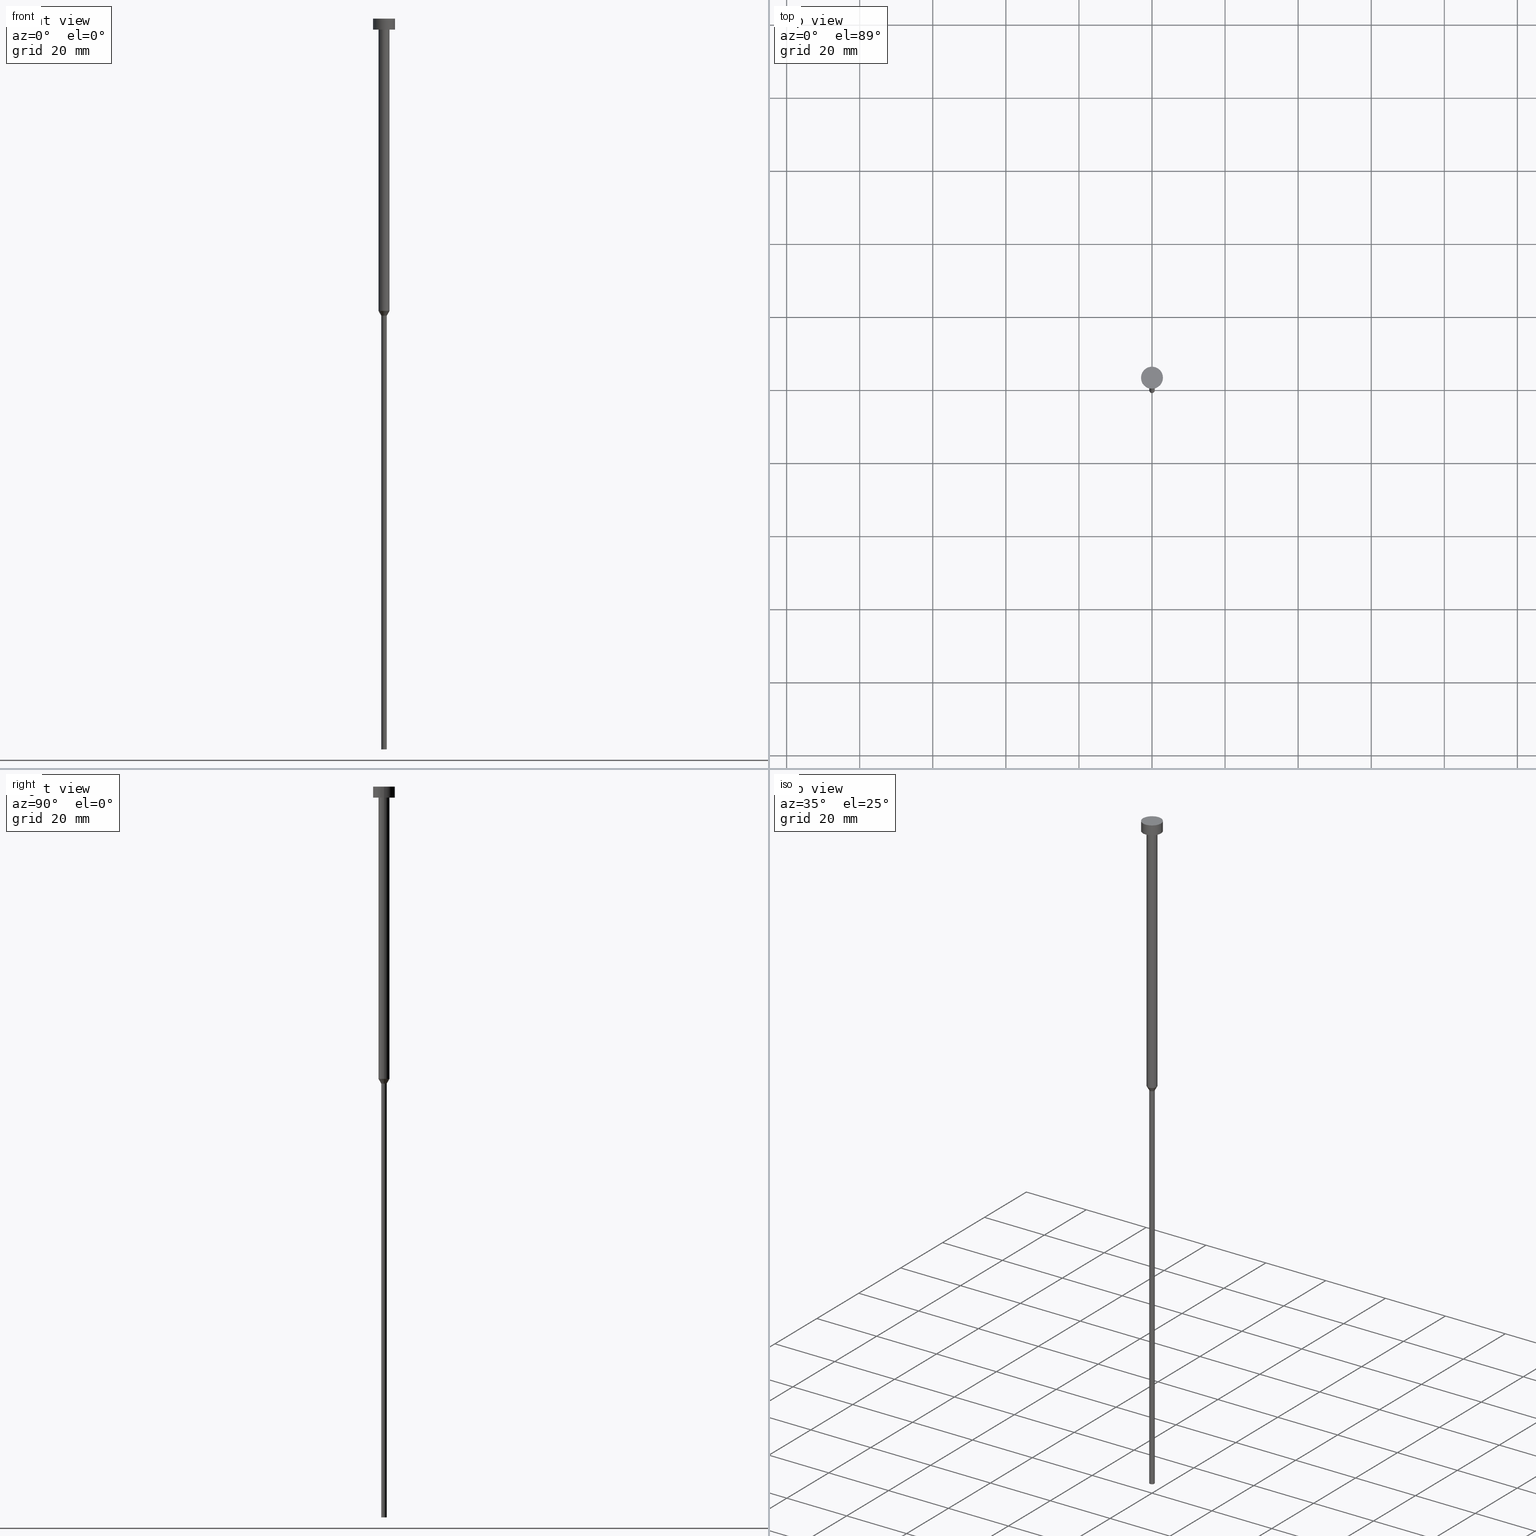
[diagram: canonical four-view strip — front | top / right | iso, engineering-drawing reading convention]
A machine part, canonical four-view strip (front | top / right | iso — engineering-drawing reading convention). The complete STEP part file that produces these views, byte-faithful:
ISO-10303-21;
HEADER;
FILE_DESCRIPTION (( 'STEP AP203' ),
    '1' );
FILE_NAME ('d0ce.STEP',
    '2023-02-13T10:00:05',
    ( '' ),
    ( '' ),
    'SwSTEP 2.0',
    'SolidWorks 2019',
    '' );
FILE_SCHEMA (( 'CONFIG_CONTROL_DESIGN' ));
ENDSEC;

DATA;
#1 = ORIENTED_EDGE ( 'NONE', *, *, #306, .T. ) ;
#2 = CARTESIAN_POINT ( 'NONE',  ( 0.7500000000000000000, 0.000000000000000000, 0.000000000000000000 ) ) ;
#3 = DIRECTION ( 'NONE',  ( -0.000000000000000000, -0.000000000000000000, 1.000000000000000000 ) ) ;
#4 = PERSON_AND_ORGANIZATION_ROLE ( 'design_owner' ) ;
#5 = EDGE_LOOP ( 'NONE', ( #310, #12, #255, #161 ) ) ;
#6 = ORIENTED_EDGE ( 'NONE', *, *, #298, .T. ) ;
#7 = VECTOR ( 'NONE', #333, 1000.000000000000227 ) ;
#8 = LOCAL_TIME ( 11, 0, 5.000000000000000000, #83 ) ;
#9 = EDGE_LOOP ( 'NONE', ( #216, #198, #103, #20 ) ) ;
#10 = ADVANCED_FACE ( 'NONE', ( #302 ), #226, .T. ) ;
#11 = CARTESIAN_POINT ( 'NONE',  ( -1.500000000000000000, 1.836970198721029934E-16, -80.00000000000000000 ) ) ;
#12 = ORIENTED_EDGE ( 'NONE', *, *, #45, .T. ) ;
#13 = SHAPE_DEFINITION_REPRESENTATION ( #218, #67 ) ;
#14 = PLANE ( 'NONE',  #78 ) ;
#15 = CARTESIAN_POINT ( 'NONE',  ( 0.7500000000000000000, 0.000000000000000000, -81.29903810567665801 ) ) ;
#16 = DIRECTION ( 'NONE',  ( 1.000000000000000000, 0.000000000000000000, 0.000000000000000000 ) ) ;
#17 = CALENDAR_DATE ( 2023, 13, 2 ) ;
#18 = FACE_OUTER_BOUND ( 'NONE', #104, .T. ) ;
#19 = ADVANCED_FACE ( 'NONE', ( #197 ), #61, .T. ) ;
#20 = ORIENTED_EDGE ( 'NONE', *, *, #84, .F. ) ;
#21 = COORDINATED_UNIVERSAL_TIME_OFFSET ( 1, 0, .AHEAD. ) ;
#22 = APPROVAL_PERSON_ORGANIZATION ( #98, #339, #86 ) ;
#23 = DIRECTION ( 'NONE',  ( -1.000000000000000000, 0.000000000000000000, -0.000000000000000000 ) ) ;
#24 = CIRCLE ( 'NONE', #40, 1.500000000000000000 ) ;
#25 = CC_DESIGN_PERSON_AND_ORGANIZATION_ASSIGNMENT ( #110, #184, ( #134 ) ) ;
#26 = CARTESIAN_POINT ( 'NONE',  ( 0.000000000000000000, 0.000000000000000000, -3.000000000000000888 ) ) ;
#27 = CARTESIAN_POINT ( 'NONE',  ( 0.000000000000000000, 0.000000000000000000, -200.0000000000000000 ) ) ;
#28 = EDGE_CURVE ( 'NONE', #65, #248, #331, .T. ) ;
#29 = EDGE_LOOP ( 'NONE', ( #91, #325 ) ) ;
#30 = LINE ( 'NONE', #219, #7 ) ;
#31 = DIRECTION ( 'NONE',  ( 1.000000000000000000, 0.000000000000000000, 0.000000000000000000 ) ) ;
#32 = CC_DESIGN_APPROVAL ( #113, ( #134 ) ) ;
#33 = ORIENTED_EDGE ( 'NONE', *, *, #147, .F. ) ;
#34 = CARTESIAN_POINT ( 'NONE',  ( 1.500000000000000000, 0.000000000000000000, -80.00000000000000000 ) ) ;
#35 = ORIENTED_EDGE ( 'NONE', *, *, #254, .F. ) ;
#36 = ORIENTED_EDGE ( 'NONE', *, *, #45, .F. ) ;
#37 = CC_DESIGN_DATE_AND_TIME_ASSIGNMENT ( #291, #345, ( #134 ) ) ;
#38 = LOCAL_TIME ( 11, 0, 5.000000000000000000, #46 ) ;
#39 = DIRECTION ( 'NONE',  ( -0.000000000000000000, -0.000000000000000000, 1.000000000000000000 ) ) ;
#40 = AXIS2_PLACEMENT_3D ( 'NONE', #192, #122, #196 ) ;
#41 = CC_DESIGN_SECURITY_CLASSIFICATION ( #134, ( #112 ) ) ;
#42 = ORIENTED_EDGE ( 'NONE', *, *, #89, .T. ) ;
#43 = FACE_OUTER_BOUND ( 'NONE', #165, .T. ) ;
#44 = VERTEX_POINT ( 'NONE', #123 ) ;
#45 = EDGE_CURVE ( 'NONE', #71, #206, #166, .T. ) ;
#46 = COORDINATED_UNIVERSAL_TIME_OFFSET ( 1, 0, .AHEAD. ) ;
#47 = DIRECTION ( 'NONE',  ( -0.000000000000000000, -0.000000000000000000, 1.000000000000000000 ) ) ;
#48 = CARTESIAN_POINT ( 'NONE',  ( 0.000000000000000000, 0.000000000000000000, -3.000000000000000888 ) ) ;
#49 = CYLINDRICAL_SURFACE ( 'NONE', #328, 0.7500000000000000000 ) ;
#50 = APPROVAL_DATE_TIME ( #236, #113 ) ;
#51 = PRODUCT_DEFINITION ( 'NEZN�M�', '', #112, #82 ) ;
#52 = DIRECTION ( 'NONE',  ( -0.000000000000000000, -0.000000000000000000, 1.000000000000000000 ) ) ;
#53 = COORDINATED_UNIVERSAL_TIME_OFFSET ( 1, 0, .AHEAD. ) ;
#54 = APPROVAL_DATE_TIME ( #108, #339 ) ;
#55 = CARTESIAN_POINT ( 'NONE',  ( -3.000000000000000000, 3.673940397442059868E-16, -3.000000000000000888 ) ) ;
#56 = PERSON_AND_ORGANIZATION ( #330, #64 ) ;
#57 = ORIENTED_EDGE ( 'NONE', *, *, #306, .F. ) ;
#58 = ORIENTED_EDGE ( 'NONE', *, *, #265, .F. ) ;
#59 = VECTOR ( 'NONE', #205, 1000.000000000000000 ) ;
#60 = DIRECTION ( 'NONE',  ( 1.000000000000000000, 0.000000000000000000, 0.000000000000000000 ) ) ;
#61 = CYLINDRICAL_SURFACE ( 'NONE', #284, 3.000000000000000000 ) ;
#62 = ORIENTED_EDGE ( 'NONE', *, *, #84, .T. ) ;
#63 = VECTOR ( 'NONE', #52, 1000.000000000000000 ) ;
#64 = ORGANIZATION ( 'NEUR�EN�', 'NEUR�EN�', '' ) ;
#65 = VERTEX_POINT ( 'NONE', #15 ) ;
#66 = CARTESIAN_POINT ( 'NONE',  ( -1.500000000000000000, 1.836970198721029934E-16, 0.000000000000000000 ) ) ;
#67 = ADVANCED_BREP_SHAPE_REPRESENTATION ( 'd0ce', ( #274, #96 ), #315 ) ;
#68 = DIRECTION ( 'NONE',  ( 1.000000000000000000, 0.000000000000000000, 0.000000000000000000 ) ) ;
#69 = PERSON_AND_ORGANIZATION ( #330, #64 ) ;
#70 = ORIENTED_EDGE ( 'NONE', *, *, #279, .T. ) ;
#71 = VERTEX_POINT ( 'NONE', #11 ) ;
#72 = ORIENTED_EDGE ( 'NONE', *, *, #193, .F. ) ;
#73 = DIRECTION ( 'NONE',  ( 1.000000000000000000, 0.000000000000000000, 0.000000000000000000 ) ) ;
#74 = ADVANCED_FACE ( 'NONE', ( #340 ), #311, .T. ) ;
#75 = CARTESIAN_POINT ( 'NONE',  ( 3.000000000000000000, 0.000000000000000000, -3.000000000000000888 ) ) ;
#76 = CYLINDRICAL_SURFACE ( 'NONE', #346, 1.500000000000000000 ) ;
#77 = DIRECTION ( 'NONE',  ( 0.000000000000000000, 0.000000000000000000, 1.000000000000000000 ) ) ;
#78 = AXIS2_PLACEMENT_3D ( 'NONE', #111, #210, #282 ) ;
#79 = ORIENTED_EDGE ( 'NONE', *, *, #137, .T. ) ;
#80 = DIRECTION ( 'NONE',  ( 1.000000000000000000, 0.000000000000000000, 0.000000000000000000 ) ) ;
#81 = DIRECTION ( 'NONE',  ( -0.000000000000000000, -0.000000000000000000, 1.000000000000000000 ) ) ;
#82 = DESIGN_CONTEXT ( 'detailed design', #151, 'design' ) ;
#83 = COORDINATED_UNIVERSAL_TIME_OFFSET ( 1, 0, .AHEAD. ) ;
#84 = EDGE_CURVE ( 'NONE', #248, #65, #273, .T. ) ;
#85 = EDGE_LOOP ( 'NONE', ( #6, #1 ) ) ;
#86 = APPROVAL_ROLE ( '' ) ;
#87 = DATE_AND_TIME ( #139, #178 ) ;
#88 = LINE ( 'NONE', #142, #329 ) ;
#89 = EDGE_CURVE ( 'NONE', #316, #44, #200, .T. ) ;
#90 = ORIENTED_EDGE ( 'NONE', *, *, #292, .T. ) ;
#91 = ORIENTED_EDGE ( 'NONE', *, *, #137, .F. ) ;
#92 = DIRECTION ( 'NONE',  ( -0.000000000000000000, -0.000000000000000000, 1.000000000000000000 ) ) ;
#93 = ADVANCED_FACE ( 'NONE', ( #314 ), #76, .T. ) ;
#94 = CYLINDRICAL_SURFACE ( 'NONE', #129, 0.7500000000000000000 ) ;
#95 = CONICAL_SURFACE ( 'NONE', #211, 1.500000000000000000, 0.5235987755983013692 ) ;
#96 = AXIS2_PLACEMENT_3D ( 'NONE', #194, #77, #180 ) ;
#97 = DIRECTION ( 'NONE',  ( 0.000000000000000000, -0.000000000000000000, 1.000000000000000000 ) ) ;
#98 = PERSON_AND_ORGANIZATION ( #330, #64 ) ;
#99 = VERTEX_POINT ( 'NONE', #288 ) ;
#100 = ADVANCED_FACE ( 'NONE', ( #43 ), #270, .T. ) ;
#101 = AXIS2_PLACEMENT_3D ( 'NONE', #26, #295, #214 ) ;
#102 = ORIENTED_EDGE ( 'NONE', *, *, #28, .F. ) ;
#103 = ORIENTED_EDGE ( 'NONE', *, *, #158, .T. ) ;
#104 = EDGE_LOOP ( 'NONE', ( #35, #181 ) ) ;
#105 = DIRECTION ( 'NONE',  ( 1.000000000000000000, 0.000000000000000000, 0.000000000000000000 ) ) ;
#106 = CIRCLE ( 'NONE', #286, 3.000000000000000000 ) ;
#107 = DIRECTION ( 'NONE',  ( -0.000000000000000000, -0.000000000000000000, 1.000000000000000000 ) ) ;
#108 = DATE_AND_TIME ( #261, #38 ) ;
#109 = CARTESIAN_POINT ( 'NONE',  ( 3.000000000000000000, 0.000000000000000000, -3.673940397442059868E-16 ) ) ;
#110 = PERSON_AND_ORGANIZATION ( #330, #64 ) ;
#111 = CARTESIAN_POINT ( 'NONE',  ( 0.000000000000000000, 0.000000000000000000, -200.0000000000000000 ) ) ;
#112 = PRODUCT_DEFINITION_FORMATION_WITH_SPECIFIED_SOURCE ( 'LIBOVOLN�', '', #309, .NOT_KNOWN. ) ;
#113 = APPROVAL ( #135, 'NEUR�EN�' ) ;
#114 = AXIS2_PLACEMENT_3D ( 'NONE', #299, #280, #31 ) ;
#115 = CARTESIAN_POINT ( 'NONE',  ( -0.7500000000000000000, 9.184850993605149670E-17, -200.0000000000000000 ) ) ;
#116 = DIRECTION ( 'NONE',  ( -0.000000000000000000, -0.000000000000000000, 1.000000000000000000 ) ) ;
#117 = PERSON_AND_ORGANIZATION ( #330, #64 ) ;
#118 = LINE ( 'NONE', #141, #63 ) ;
#119 = AXIS2_PLACEMENT_3D ( 'NONE', #278, #3, #355 ) ;
#120 = ADVANCED_FACE ( 'NONE', ( #349 ), #49, .T. ) ;
#121 = DIRECTION ( 'NONE',  ( -0.000000000000000000, -0.000000000000000000, 1.000000000000000000 ) ) ;
#122 = DIRECTION ( 'NONE',  ( -0.000000000000000000, -0.000000000000000000, 1.000000000000000000 ) ) ;
#123 = CARTESIAN_POINT ( 'NONE',  ( -3.000000000000000000, 3.673940397442059868E-16, -3.673940397442059868E-16 ) ) ;
#124 = FACE_OUTER_BOUND ( 'NONE', #128, .T. ) ;
#125 = DIRECTION ( 'NONE',  ( -0.000000000000000000, -0.000000000000000000, 1.000000000000000000 ) ) ;
#126 = LOCAL_TIME ( 11, 0, 5.000000000000000000, #53 ) ;
#127 = AXIS2_PLACEMENT_3D ( 'NONE', #285, #39, #260 ) ;
#128 = EDGE_LOOP ( 'NONE', ( #79, #90, #102, #257 ) ) ;
#129 = AXIS2_PLACEMENT_3D ( 'NONE', #250, #125, #105 ) ;
#130 = ORIENTED_EDGE ( 'NONE', *, *, #354, .T. ) ;
#131 = DIRECTION ( 'NONE',  ( -0.000000000000000000, -0.000000000000000000, 1.000000000000000000 ) ) ;
#132 = ORIENTED_EDGE ( 'NONE', *, *, #323, .T. ) ;
#133 = PERSON_AND_ORGANIZATION_ROLE ( 'creator' ) ;
#134 = SECURITY_CLASSIFICATION ( '', '', #342 ) ;
#135 = APPROVAL_STATUS ( 'not_yet_approved' ) ;
#136 = CIRCLE ( 'NONE', #215, 1.500000000000000000 ) ;
#137 = EDGE_CURVE ( 'NONE', #99, #253, #175, .T. ) ;
#138 = AXIS2_PLACEMENT_3D ( 'NONE', #296, #167, #275 ) ;
#139 = CALENDAR_DATE ( 2023, 13, 2 ) ;
#140 = CIRCLE ( 'NONE', #114, 3.000000000000000000 ) ;
#141 = CARTESIAN_POINT ( 'NONE',  ( 1.500000000000000000, 0.000000000000000000, 0.000000000000000000 ) ) ;
#142 = CARTESIAN_POINT ( 'NONE',  ( 1.500000000000000000, 0.000000000000000000, -80.00000000000000000 ) ) ;
#143 = CC_DESIGN_PERSON_AND_ORGANIZATION_ASSIGNMENT ( #241, #162, ( #112 ) ) ;
#144 = ORIENTED_EDGE ( 'NONE', *, *, #279, .F. ) ;
#145 = DIRECTION ( 'NONE',  ( -0.000000000000000000, -0.000000000000000000, 1.000000000000000000 ) ) ;
#146 = DIRECTION ( 'NONE',  ( 1.000000000000000000, 0.000000000000000000, 0.000000000000000000 ) ) ;
#147 = EDGE_CURVE ( 'NONE', #206, #71, #24, .T. ) ;
#148 = DIRECTION ( 'NONE',  ( 1.000000000000000000, 0.000000000000000000, 0.000000000000000000 ) ) ;
#149 = CC_DESIGN_PERSON_AND_ORGANIZATION_ASSIGNMENT ( #268, #243, ( #112 ) ) ;
#150 = DIRECTION ( 'NONE',  ( -0.000000000000000000, -0.000000000000000000, 1.000000000000000000 ) ) ;
#151 = APPLICATION_CONTEXT ( 'configuration controlled 3d designs of mechanical parts and assemblies' ) ;
#152 = CARTESIAN_POINT ( 'NONE',  ( -1.500000000000000000, 1.836970198721029934E-16, -3.000000000000000888 ) ) ;
#153 =( NAMED_UNIT ( * ) SI_UNIT ( $, .STERADIAN. ) SOLID_ANGLE_UNIT ( ) );
#154 = EDGE_CURVE ( 'NONE', #71, #155, #217, .T. ) ;
#155 = VERTEX_POINT ( 'NONE', #152 ) ;
#156 = ORIENTED_EDGE ( 'NONE', *, *, #254, .T. ) ;
#157 = DIRECTION ( 'NONE',  ( -0.000000000000000000, -0.000000000000000000, 1.000000000000000000 ) ) ;
#158 = EDGE_CURVE ( 'NONE', #99, #65, #353, .T. ) ;
#159 = DIRECTION ( 'NONE',  ( 0.000000000000000000, 0.000000000000000000, -1.000000000000000000 ) ) ;
#160 = CC_DESIGN_APPROVAL ( #339, ( #51 ) ) ;
#161 = ORIENTED_EDGE ( 'NONE', *, *, #312, .F. ) ;
#162 = PERSON_AND_ORGANIZATION_ROLE ( 'creator' ) ;
#163 = AXIS2_PLACEMENT_3D ( 'NONE', #322, #159, #23 ) ;
#164 = APPROVAL_ROLE ( '' ) ;
#165 = EDGE_LOOP ( 'NONE', ( #213, #305, #245, #58 ) ) ;
#166 = CIRCLE ( 'NONE', #224, 1.500000000000000000 ) ;
#167 = DIRECTION ( 'NONE',  ( -0.000000000000000000, -0.000000000000000000, 1.000000000000000000 ) ) ;
#168 = FACE_OUTER_BOUND ( 'NONE', #313, .T. ) ;
#169 = AXIS2_PLACEMENT_3D ( 'NONE', #27, #92, #148 ) ;
#170 = VECTOR ( 'NONE', #212, 1000.000000000000000 ) ;
#171 = CARTESIAN_POINT ( 'NONE',  ( 0.000000000000000000, 0.000000000000000000, -80.00000000000000000 ) ) ;
#172 = ADVANCED_FACE ( 'NONE', ( #168 ), #336, .T. ) ;
#173 = DIRECTION ( 'NONE',  ( -0.000000000000000000, -0.000000000000000000, 1.000000000000000000 ) ) ;
#174 = DIRECTION ( 'NONE',  ( 1.000000000000000000, 0.000000000000000000, 0.000000000000000000 ) ) ;
#175 = CIRCLE ( 'NONE', #169, 0.7500000000000000000 ) ;
#176 = EDGE_LOOP ( 'NONE', ( #341, #303 ) ) ;
#177 = FACE_BOUND ( 'NONE', #176, .T. ) ;
#178 = LOCAL_TIME ( 11, 0, 5.000000000000000000, #21 ) ;
#179 = CARTESIAN_POINT ( 'NONE',  ( 0.000000000000000000, 0.000000000000000000, 0.000000000000000000 ) ) ;
#180 = DIRECTION ( 'NONE',  ( 1.000000000000000000, 0.000000000000000000, 0.000000000000000000 ) ) ;
#181 = ORIENTED_EDGE ( 'NONE', *, *, #354, .F. ) ;
#182 = CARTESIAN_POINT ( 'NONE',  ( 0.000000000000000000, 0.000000000000000000, 0.000000000000000000 ) ) ;
#183 = LINE ( 'NONE', #244, #170 ) ;
#184 = PERSON_AND_ORGANIZATION_ROLE ( 'classification_officer' ) ;
#185 = PERSON_AND_ORGANIZATION ( #330, #64 ) ;
#186 = CARTESIAN_POINT ( 'NONE',  ( -0.7500000000000000000, 9.184850993605149670E-17, -81.29903810567665801 ) ) ;
#187 = DIRECTION ( 'NONE',  ( -0.000000000000000000, -0.000000000000000000, 1.000000000000000000 ) ) ;
#188 = CC_DESIGN_DATE_AND_TIME_ASSIGNMENT ( #207, #320, ( #51 ) ) ;
#189 = CALENDAR_DATE ( 2023, 13, 2 ) ;
#190 = CC_DESIGN_APPROVAL ( #223, ( #112 ) ) ;
#191 = AXIS2_PLACEMENT_3D ( 'NONE', #277, #301, #60 ) ;
#192 = CARTESIAN_POINT ( 'NONE',  ( 0.000000000000000000, 0.000000000000000000, -80.00000000000000000 ) ) ;
#193 = EDGE_CURVE ( 'NONE', #248, #71, #30, .T. ) ;
#194 = CARTESIAN_POINT ( 'NONE',  ( 0.000000000000000000, 0.000000000000000000, 0.000000000000000000 ) ) ;
#195 = APPLICATION_PROTOCOL_DEFINITION ( 'international standard', 'config_control_design', 1994, #300 ) ;
#196 = DIRECTION ( 'NONE',  ( 1.000000000000000000, 0.000000000000000000, 0.000000000000000000 ) ) ;
#197 = FACE_OUTER_BOUND ( 'NONE', #201, .T. ) ;
#198 = ORIENTED_EDGE ( 'NONE', *, *, #271, .T. ) ;
#199 = VECTOR ( 'NONE', #145, 1000.000000000000000 ) ;
#200 = LINE ( 'NONE', #256, #59 ) ;
#201 = EDGE_LOOP ( 'NONE', ( #156, #42, #203, #352 ) ) ;
#202 = ADVANCED_FACE ( 'NONE', ( #124 ), #94, .T. ) ;
#203 = ORIENTED_EDGE ( 'NONE', *, *, #298, .F. ) ;
#204 = DIRECTION ( 'NONE',  ( 1.000000000000000000, 0.000000000000000000, 0.000000000000000000 ) ) ;
#205 = DIRECTION ( 'NONE',  ( -0.000000000000000000, -0.000000000000000000, 1.000000000000000000 ) ) ;
#206 = VERTEX_POINT ( 'NONE', #34 ) ;
#207 = DATE_AND_TIME ( #17, #220 ) ;
#208 = ADVANCED_FACE ( 'NONE', ( #259 ), #95, .T. ) ;
#209 = AXIS2_PLACEMENT_3D ( 'NONE', #182, #237, #258 ) ;
#210 = DIRECTION ( 'NONE',  ( 0.000000000000000000, 0.000000000000000000, -1.000000000000000000 ) ) ;
#211 = AXIS2_PLACEMENT_3D ( 'NONE', #338, #131, #73 ) ;
#212 = DIRECTION ( 'NONE',  ( -0.000000000000000000, -0.000000000000000000, 1.000000000000000000 ) ) ;
#213 = ORIENTED_EDGE ( 'NONE', *, *, #147, .T. ) ;
#214 = DIRECTION ( 'NONE',  ( 1.000000000000000000, 0.000000000000000000, 0.000000000000000000 ) ) ;
#215 = AXIS2_PLACEMENT_3D ( 'NONE', #318, #173, #204 ) ;
#216 = ORIENTED_EDGE ( 'NONE', *, *, #292, .F. ) ;
#217 = LINE ( 'NONE', #66, #199 ) ;
#218 = PRODUCT_DEFINITION_SHAPE ( 'NONE', 'NONE',  #51 ) ;
#219 = CARTESIAN_POINT ( 'NONE',  ( -1.500000000000000000, 1.836970198721029934E-16, -80.00000000000000000 ) ) ;
#220 = LOCAL_TIME ( 11, 0, 5.000000000000000000, #234 ) ;
#221 =( NAMED_UNIT ( * ) PLANE_ANGLE_UNIT ( ) SI_UNIT ( $, .RADIAN. ) );
#222 = AXIS2_PLACEMENT_3D ( 'NONE', #48, #187, #16 ) ;
#223 = APPROVAL ( #294, 'NEUR�EN�' ) ;
#224 = AXIS2_PLACEMENT_3D ( 'NONE', #171, #150, #249 ) ;
#225 = APPLICATION_PROTOCOL_DEFINITION ( 'international standard', 'config_control_design', 1994, #151 ) ;
#226 = PLANE ( 'NONE',  #230 ) ;
#227 = MECHANICAL_CONTEXT ( 'NONE', #300, 'mechanical' ) ;
#228 = ORIENTED_EDGE ( 'NONE', *, *, #89, .F. ) ;
#229 = EDGE_CURVE ( 'NONE', #246, #155, #136, .T. ) ;
#230 = AXIS2_PLACEMENT_3D ( 'NONE', #304, #97, #174 ) ;
#231 = VERTEX_POINT ( 'NONE', #75 ) ;
#232 = ADVANCED_FACE ( 'NONE', ( #177, #18 ), #327, .T. ) ;
#233 = VECTOR ( 'NONE', #157, 1000.000000000000000 ) ;
#234 = COORDINATED_UNIVERSAL_TIME_OFFSET ( 1, 0, .AHEAD. ) ;
#235 = DIRECTION ( 'NONE',  ( -0.000000000000000000, -0.000000000000000000, 1.000000000000000000 ) ) ;
#236 = DATE_AND_TIME ( #266, #126 ) ;
#237 = DIRECTION ( 'NONE',  ( -0.000000000000000000, -0.000000000000000000, 1.000000000000000000 ) ) ;
#238 = CLOSED_SHELL ( 'NONE', ( #19, #100, #172, #202, #334, #120, #208, #93, #232, #74, #10 ) ) ;
#239 = DIRECTION ( 'NONE',  ( 1.000000000000000000, 0.000000000000000000, 0.000000000000000000 ) ) ;
#240 = LINE ( 'NONE', #347, #233 ) ;
#241 = PERSON_AND_ORGANIZATION ( #330, #64 ) ;
#242 = CARTESIAN_POINT ( 'NONE',  ( 0.000000000000000000, 0.000000000000000000, -3.673940397442059868E-16 ) ) ;
#243 = PERSON_AND_ORGANIZATION_ROLE ( 'design_supplier' ) ;
#244 = CARTESIAN_POINT ( 'NONE',  ( -0.7500000000000000000, 9.184850993605149670E-17, 0.000000000000000000 ) ) ;
#245 = ORIENTED_EDGE ( 'NONE', *, *, #229, .F. ) ;
#246 = VERTEX_POINT ( 'NONE', #269 ) ;
#247 = VECTOR ( 'NONE', #121, 1000.000000000000000 ) ;
#248 = VERTEX_POINT ( 'NONE', #186 ) ;
#249 = DIRECTION ( 'NONE',  ( 1.000000000000000000, 0.000000000000000000, 0.000000000000000000 ) ) ;
#250 = CARTESIAN_POINT ( 'NONE',  ( 0.000000000000000000, 0.000000000000000000, 0.000000000000000000 ) ) ;
#251 = AXIS2_PLACEMENT_3D ( 'NONE', #242, #235, #289 ) ;
#252 = DIRECTION ( 'NONE',  ( -0.000000000000000000, -0.000000000000000000, 1.000000000000000000 ) ) ;
#253 = VERTEX_POINT ( 'NONE', #115 ) ;
#254 = EDGE_CURVE ( 'NONE', #231, #316, #324, .T. ) ;
#255 = ORIENTED_EDGE ( 'NONE', *, *, #265, .T. ) ;
#256 = CARTESIAN_POINT ( 'NONE',  ( -3.000000000000000000, 3.673940397442059868E-16, 0.000000000000000000 ) ) ;
#257 = ORIENTED_EDGE ( 'NONE', *, *, #158, .F. ) ;
#258 = DIRECTION ( 'NONE',  ( 1.000000000000000000, 0.000000000000000000, 0.000000000000000000 ) ) ;
#259 = FACE_OUTER_BOUND ( 'NONE', #332, .T. ) ;
#260 = DIRECTION ( 'NONE',  ( 1.000000000000000000, 0.000000000000000000, 0.000000000000000000 ) ) ;
#261 = CALENDAR_DATE ( 2023, 13, 2 ) ;
#262 = CARTESIAN_POINT ( 'NONE',  ( 0.000000000000000000, 0.000000000000000000, -3.673940397442059868E-16 ) ) ;
#263 = APPROVAL_STATUS ( 'not_yet_approved' ) ;
#264 = DIRECTION ( 'NONE',  ( 0.5000000000000021094, 0.000000000000000000, 0.8660254037844373753 ) ) ;
#265 = EDGE_CURVE ( 'NONE', #206, #246, #118, .T. ) ;
#266 = CALENDAR_DATE ( 2023, 13, 2 ) ;
#267 = CIRCLE ( 'NONE', #251, 3.000000000000000000 ) ;
#268 = PERSON_AND_ORGANIZATION ( #330, #64 ) ;
#269 = CARTESIAN_POINT ( 'NONE',  ( 1.500000000000000000, 0.000000000000000000, -3.000000000000000888 ) ) ;
#270 = CYLINDRICAL_SURFACE ( 'NONE', #138, 1.500000000000000000 ) ;
#271 = EDGE_CURVE ( 'NONE', #253, #99, #317, .T. ) ;
#272 =( LENGTH_UNIT ( ) NAMED_UNIT ( * ) SI_UNIT ( .MILLI., .METRE. ) );
#273 = CIRCLE ( 'NONE', #127, 0.7500000000000000000 ) ;
#274 = MANIFOLD_SOLID_BREP ( 'Rotovat1', #238 ) ;
#275 = DIRECTION ( 'NONE',  ( 1.000000000000000000, 0.000000000000000000, 0.000000000000000000 ) ) ;
#276 = ORIENTED_EDGE ( 'NONE', *, *, #28, .T. ) ;
#277 = CARTESIAN_POINT ( 'NONE',  ( 0.000000000000000000, 0.000000000000000000, -80.00000000000000000 ) ) ;
#278 = CARTESIAN_POINT ( 'NONE',  ( 0.000000000000000000, 0.000000000000000000, -81.29903810567665801 ) ) ;
#279 = EDGE_CURVE ( 'NONE', #65, #206, #88, .T. ) ;
#280 = DIRECTION ( 'NONE',  ( -0.000000000000000000, -0.000000000000000000, 1.000000000000000000 ) ) ;
#281 = PRODUCT_RELATED_PRODUCT_CATEGORY ( 'detail', '', ( #309 ) ) ;
#282 = DIRECTION ( 'NONE',  ( -1.000000000000000000, 0.000000000000000000, -0.000000000000000000 ) ) ;
#283 = CARTESIAN_POINT ( 'NONE',  ( 0.000000000000000000, 0.000000000000000000, 0.000000000000000000 ) ) ;
#284 = AXIS2_PLACEMENT_3D ( 'NONE', #283, #252, #68 ) ;
#285 = CARTESIAN_POINT ( 'NONE',  ( 0.000000000000000000, 0.000000000000000000, -81.29903810567665801 ) ) ;
#286 = AXIS2_PLACEMENT_3D ( 'NONE', #262, #81, #239 ) ;
#287 = AXIS2_PLACEMENT_3D ( 'NONE', #321, #47, #344 ) ;
#288 = CARTESIAN_POINT ( 'NONE',  ( 0.7500000000000000000, 0.000000000000000000, -200.0000000000000000 ) ) ;
#289 = DIRECTION ( 'NONE',  ( 1.000000000000000000, 0.000000000000000000, 0.000000000000000000 ) ) ;
#290 = UNCERTAINTY_MEASURE_WITH_UNIT (LENGTH_MEASURE( 1.000000000000000082E-05 ), #272, 'distance_accuracy_value', 'NONE');
#291 = DATE_AND_TIME ( #189, #8 ) ;
#292 = EDGE_CURVE ( 'NONE', #253, #248, #183, .T. ) ;
#293 = CC_DESIGN_PERSON_AND_ORGANIZATION_ASSIGNMENT ( #117, #133, ( #51 ) ) ;
#294 = APPROVAL_STATUS ( 'not_yet_approved' ) ;
#295 = DIRECTION ( 'NONE',  ( -0.000000000000000000, -0.000000000000000000, 1.000000000000000000 ) ) ;
#296 = CARTESIAN_POINT ( 'NONE',  ( 0.000000000000000000, 0.000000000000000000, 0.000000000000000000 ) ) ;
#297 = FACE_OUTER_BOUND ( 'NONE', #29, .T. ) ;
#298 = EDGE_CURVE ( 'NONE', #308, #44, #267, .T. ) ;
#299 = CARTESIAN_POINT ( 'NONE',  ( 0.000000000000000000, 0.000000000000000000, -3.000000000000000888 ) ) ;
#300 = APPLICATION_CONTEXT ( 'configuration controlled 3d designs of mechanical parts and assemblies' ) ;
#301 = DIRECTION ( 'NONE',  ( -0.000000000000000000, -0.000000000000000000, 1.000000000000000000 ) ) ;
#302 = FACE_OUTER_BOUND ( 'NONE', #85, .T. ) ;
#303 = ORIENTED_EDGE ( 'NONE', *, *, #312, .T. ) ;
#304 = CARTESIAN_POINT ( 'NONE',  ( 0.000000000000000000, 0.000000000000000000, -1.836970198721029934E-16 ) ) ;
#305 = ORIENTED_EDGE ( 'NONE', *, *, #154, .T. ) ;
#306 = EDGE_CURVE ( 'NONE', #44, #308, #106, .T. ) ;
#307 = CC_DESIGN_PERSON_AND_ORGANIZATION_ASSIGNMENT ( #69, #4, ( #309 ) ) ;
#308 = VERTEX_POINT ( 'NONE', #109 ) ;
#309 = PRODUCT ( 'd0ce', 'd0ce', '', ( #227 ) ) ;
#310 = ORIENTED_EDGE ( 'NONE', *, *, #154, .F. ) ;
#311 = CYLINDRICAL_SURFACE ( 'NONE', #209, 3.000000000000000000 ) ;
#312 = EDGE_CURVE ( 'NONE', #155, #246, #350, .T. ) ;
#313 = EDGE_LOOP ( 'NONE', ( #276, #337, #33, #144 ) ) ;
#314 = FACE_OUTER_BOUND ( 'NONE', #5, .T. ) ;
#315 =( GEOMETRIC_REPRESENTATION_CONTEXT ( 3 ) GLOBAL_UNCERTAINTY_ASSIGNED_CONTEXT ( ( #290 ) ) GLOBAL_UNIT_ASSIGNED_CONTEXT ( ( #272, #221, #153 ) ) REPRESENTATION_CONTEXT ( 'NONE', 'WORKASPACE' ) );
#316 = VERTEX_POINT ( 'NONE', #55 ) ;
#317 = CIRCLE ( 'NONE', #287, 0.7500000000000000000 ) ;
#318 = CARTESIAN_POINT ( 'NONE',  ( 0.000000000000000000, 0.000000000000000000, -3.000000000000000888 ) ) ;
#319 = APPROVAL_PERSON_ORGANIZATION ( #56, #113, #164 ) ;
#320 = DATE_TIME_ROLE ( 'creation_date' ) ;
#321 = CARTESIAN_POINT ( 'NONE',  ( 0.000000000000000000, 0.000000000000000000, -200.0000000000000000 ) ) ;
#322 = CARTESIAN_POINT ( 'NONE',  ( 0.000000000000000000, -3.000000000000000000, -3.000000000000000888 ) ) ;
#323 = EDGE_CURVE ( 'NONE', #231, #308, #240, .T. ) ;
#324 = CIRCLE ( 'NONE', #101, 3.000000000000000000 ) ;
#325 = ORIENTED_EDGE ( 'NONE', *, *, #271, .F. ) ;
#326 = APPROVAL_ROLE ( '' ) ;
#327 = PLANE ( 'NONE',  #163 ) ;
#328 = AXIS2_PLACEMENT_3D ( 'NONE', #348, #116, #146 ) ;
#329 = VECTOR ( 'NONE', #264, 1000.000000000000227 ) ;
#330 = PERSON ( 'NEUR�EN�', 'NEUR�EN�', 'NEUR�EN�', ('NEUR�EN�'), ('NEUR�EN�'), ('NEUR�EN�') ) ;
#331 = CIRCLE ( 'NONE', #119, 0.7500000000000000000 ) ;
#332 = EDGE_LOOP ( 'NONE', ( #72, #62, #70, #36 ) ) ;
#333 = DIRECTION ( 'NONE',  ( -0.5000000000000021094, 6.123233995736791920E-17, 0.8660254037844373753 ) ) ;
#334 = ADVANCED_FACE ( 'NONE', ( #297 ), #14, .T. ) ;
#335 = APPROVAL_PERSON_ORGANIZATION ( #185, #223, #326 ) ;
#336 = CONICAL_SURFACE ( 'NONE', #191, 1.500000000000000000, 0.5235987755983013692 ) ;
#337 = ORIENTED_EDGE ( 'NONE', *, *, #193, .T. ) ;
#338 = CARTESIAN_POINT ( 'NONE',  ( 0.000000000000000000, 0.000000000000000000, -80.00000000000000000 ) ) ;
#339 = APPROVAL ( #263, 'NEUR�EN�' ) ;
#340 = FACE_OUTER_BOUND ( 'NONE', #351, .T. ) ;
#341 = ORIENTED_EDGE ( 'NONE', *, *, #229, .T. ) ;
#342 = SECURITY_CLASSIFICATION_LEVEL ( 'unclassified' ) ;
#343 = APPROVAL_DATE_TIME ( #87, #223 ) ;
#344 = DIRECTION ( 'NONE',  ( 1.000000000000000000, 0.000000000000000000, 0.000000000000000000 ) ) ;
#345 = DATE_TIME_ROLE ( 'classification_date' ) ;
#346 = AXIS2_PLACEMENT_3D ( 'NONE', #179, #107, #80 ) ;
#347 = CARTESIAN_POINT ( 'NONE',  ( 3.000000000000000000, 0.000000000000000000, 0.000000000000000000 ) ) ;
#348 = CARTESIAN_POINT ( 'NONE',  ( 0.000000000000000000, 0.000000000000000000, 0.000000000000000000 ) ) ;
#349 = FACE_OUTER_BOUND ( 'NONE', #9, .T. ) ;
#350 = CIRCLE ( 'NONE', #222, 1.500000000000000000 ) ;
#351 = EDGE_LOOP ( 'NONE', ( #228, #130, #132, #57 ) ) ;
#352 = ORIENTED_EDGE ( 'NONE', *, *, #323, .F. ) ;
#353 = LINE ( 'NONE', #2, #247 ) ;
#354 = EDGE_CURVE ( 'NONE', #316, #231, #140, .T. ) ;
#355 = DIRECTION ( 'NONE',  ( 1.000000000000000000, 0.000000000000000000, 0.000000000000000000 ) ) ;
ENDSEC;
END-ISO-10303-21;
